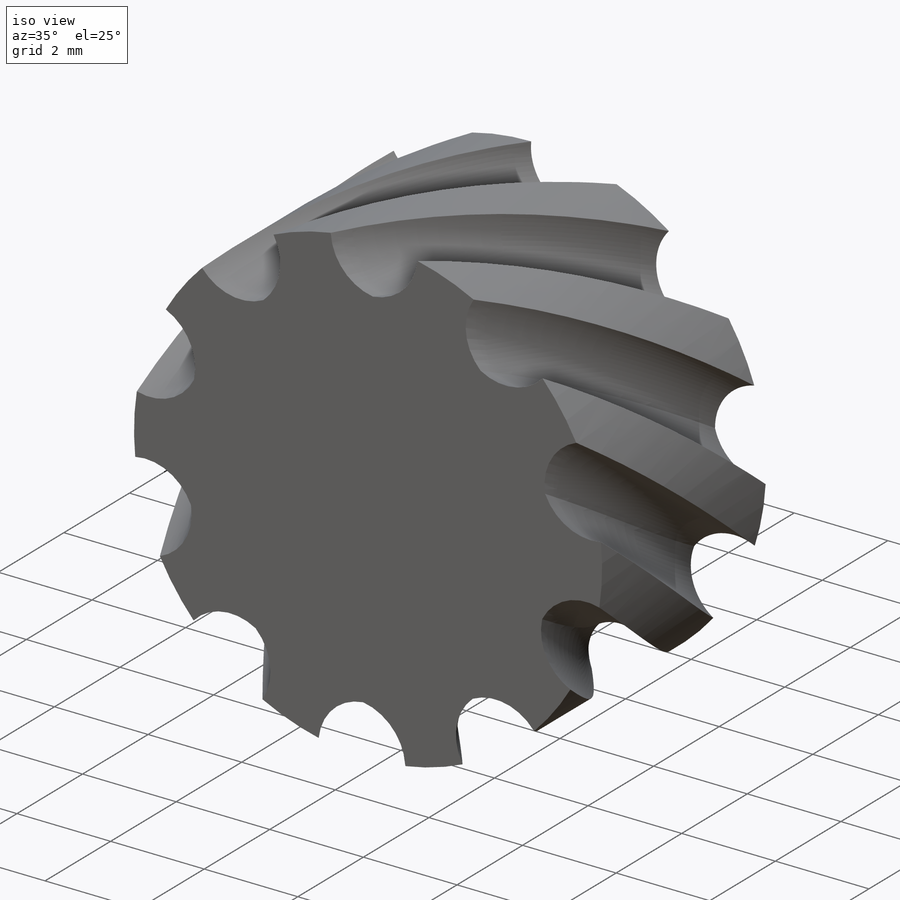
[diagram: iso view]
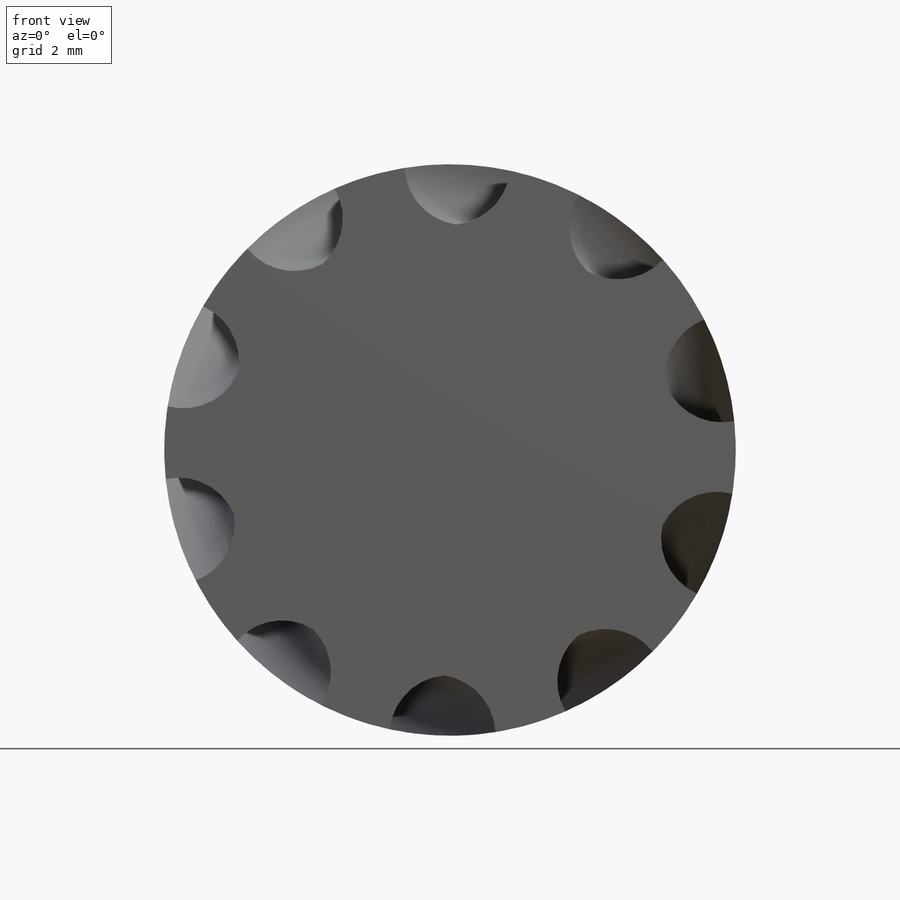
[diagram: front view]
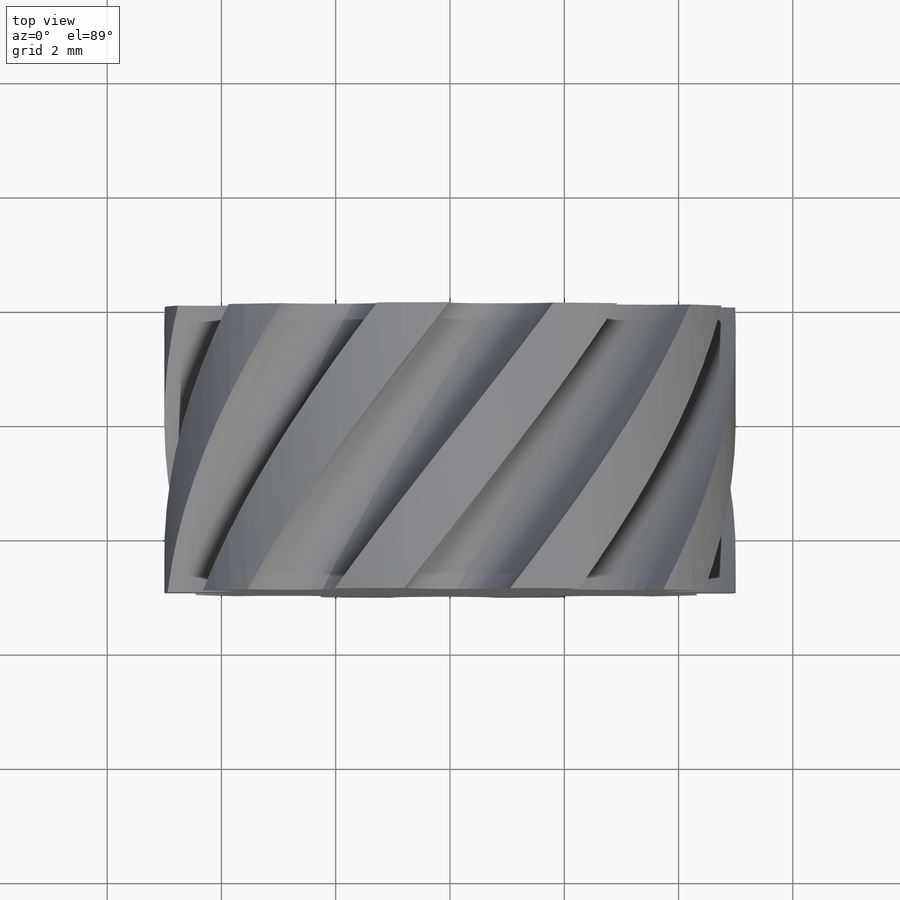
[diagram: top view]
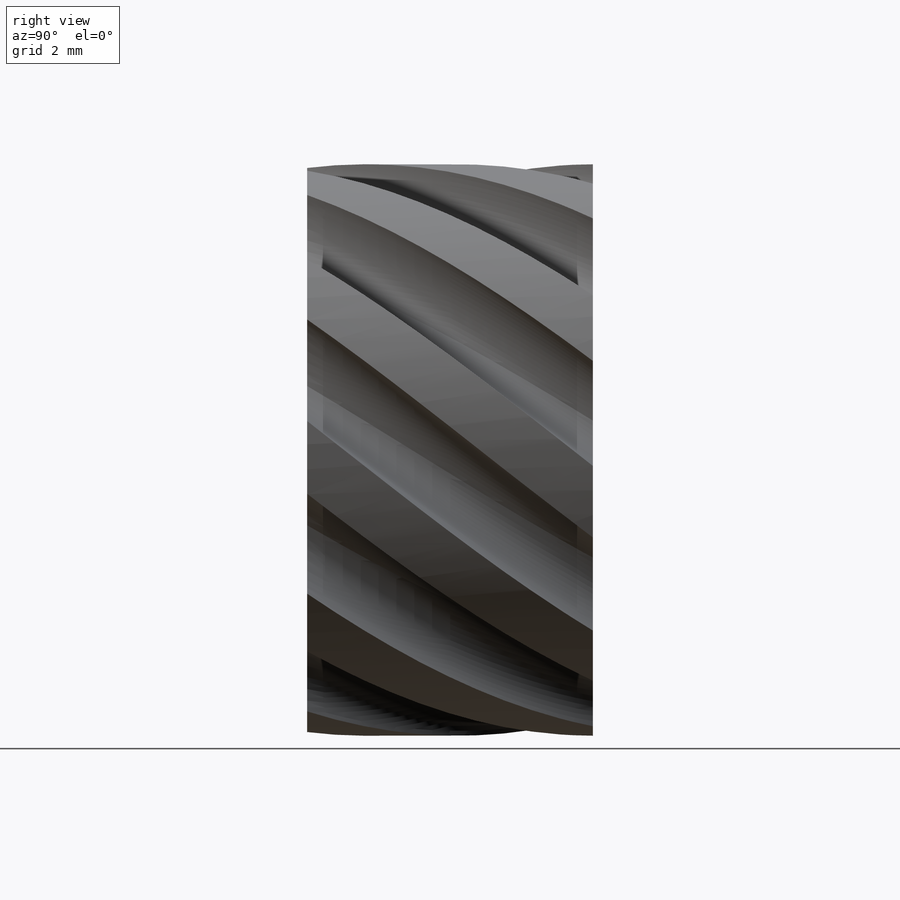
[diagram: right view]
SOLIDWORKS PART (.sldprt)
format: sldprt  version: not decoded by parser v0  size: 457,728 bytes
history: native  units: mm
features: sketch x3, material x1, extrude x1, helix x1, sweep x1, pattern_circular x1 (+15 scaffold rows collapsed)
feature tree (23):
  scaffold x15  (default folders/planes/origin — collapsed)
  material  "Material <not specified>"
  sketch  "Sketch1"  dims[D1=4.2mm]
  extrude  "Extrude1"  Depth=5mm
  sketch  "Sketch2"  dims[c1.D1=10.0mm c1.D2=9.6mm c1.D3=8.0mm c1.D4=2.1225mm c1.D5=3.0mm c1.D6=2.0mm c2.D5=1.698mm c2.D4=2.1225mm c2.D7=0.849mm c2.D8=2.1225mm c2.RO2=2.1225mm c3.D4=~4.167808mm c3.D6=2.1225mm c3.D5=9.525mm c4.D5=88.0deg c5.D5=~0.766976mm c5.D4=0.849mm c5.D6=~9.057794mm c6.D6=70.0deg c6.D5=~1.06125mm c7.D5=20.0deg c7.D6=0.849mm c7.D4=~0.438494mm c8.D4=20.0deg c8.D5=0.849mm c8.D7=~12.757595mm c9.D7=87.0deg]
  sketch  "Sketch4"
  helix  "Helix/Spiral1"  Pitch=8mm
  sweep  "Cut-Sweep1"
  pattern_circular  "CirPattern1"  Count=10 Angle=360deg RO1=0.849mm
decode coverage: 5 of 7 modeling features carry decoded parameters
note: ~ marks probable driven/reference dimensions
note: suppression state not decoded; provenance and decode notes live in map.json
